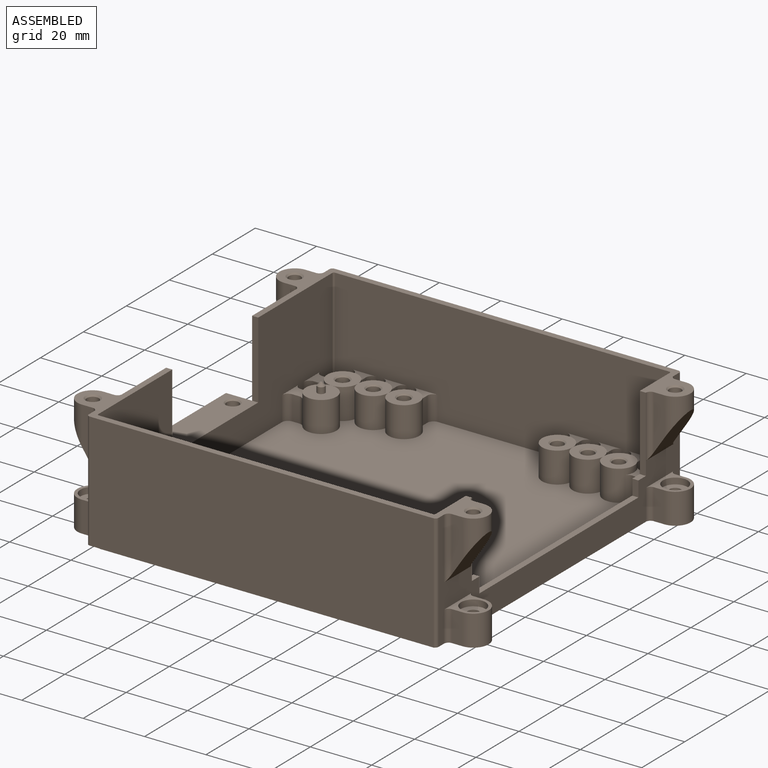
[diagram: assembled view]
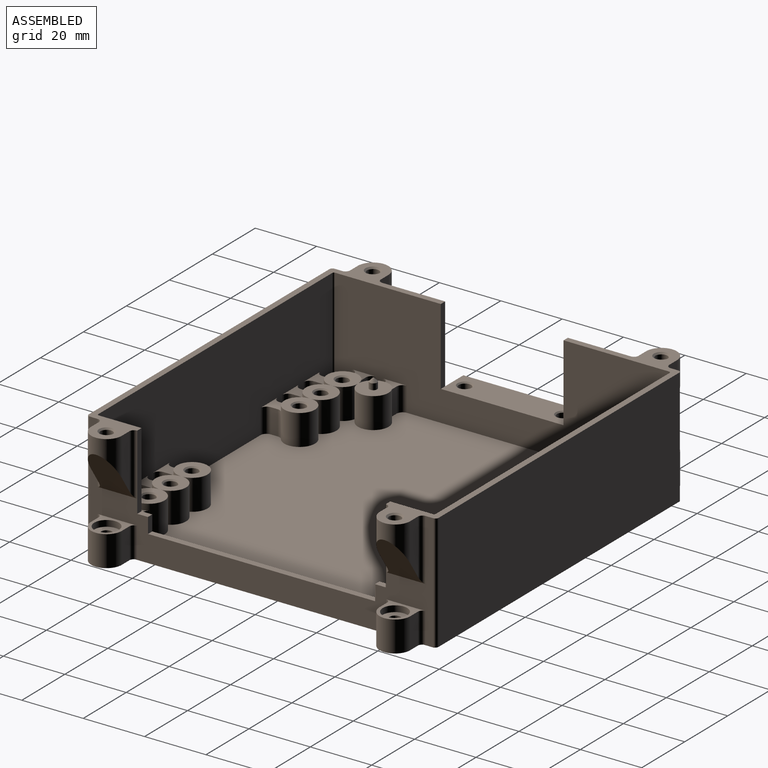
[diagram: assembled view, second angle]
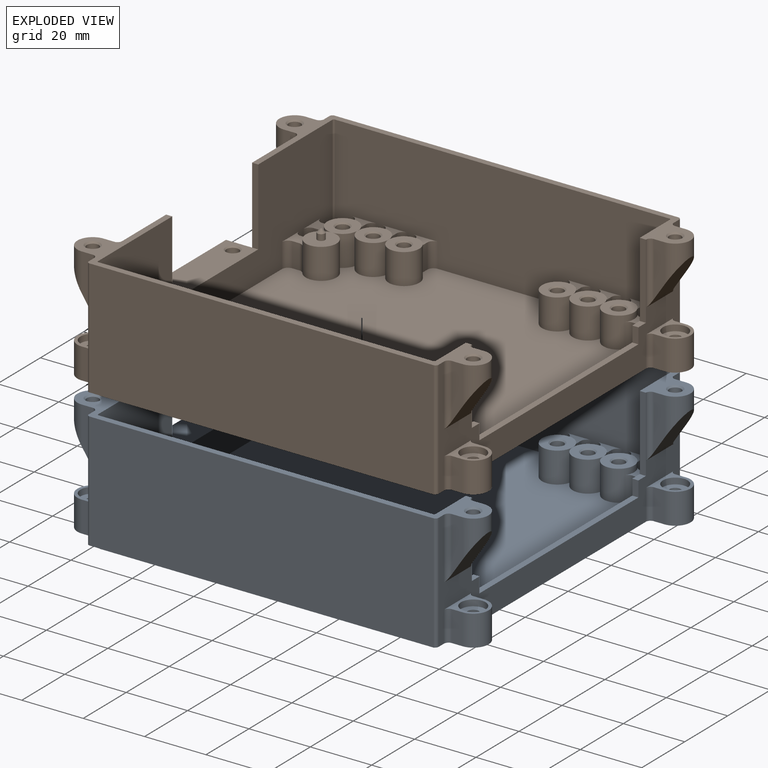
[diagram: exploded view]
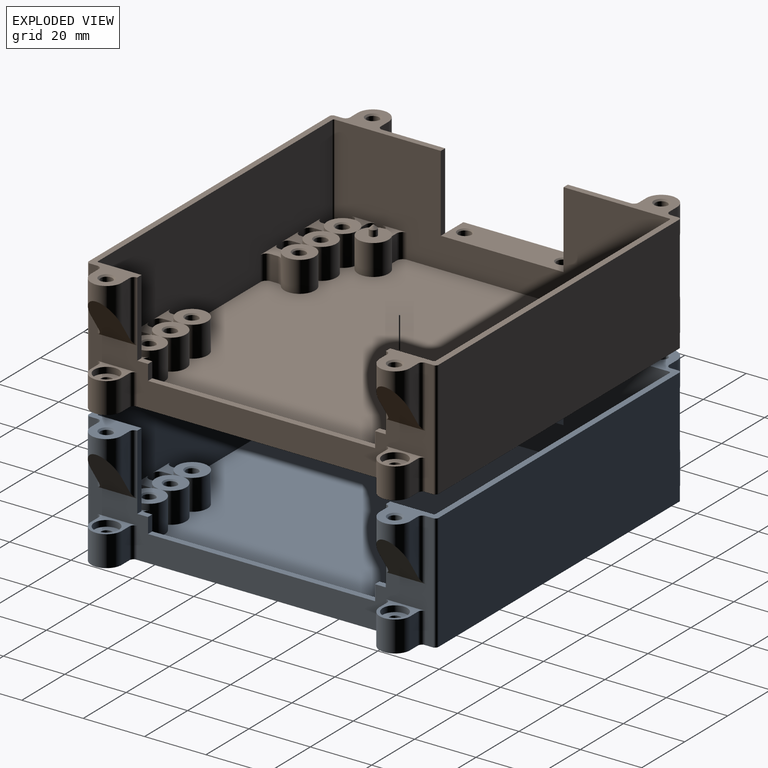
[diagram: exploded view, second angle]
FCSTD DOCUMENT  (FreeCAD 1.0R39104 (Git))
Label: assembly
License: All rights reserved
LicenseURL: https://en.wikipedia.org/wiki/All_rights_reserved
objects: App::Link×3, App::FeaturePython×1, Assembly::JointGroup×1, Assembly::AssemblyObject×1
EXTERNAL_REF file=Case_1.3.5.FCStd obj=Body
EXTERNAL_REF file=Case_2.1.FCStd obj=Body

FEATURE [App::Link] Bottom_cover
  LinkedObject = -> <external Case_1.3.5.FCStd>#Body
FEATURE [App::FeaturePython] GroundedJoint  # Assembly grounded joint (typed FeaturePython)
  ObjectToGround = -> Bottom_cover
FEATURE [Assembly::JointGroup] Joints
  Group = -> [GroundedJoint]
FEATURE [App::Link] Body
  LinkPlacement = pos=(-0.152465,-0.110771,40.9653) rot=(-0.707107,0.707107,0;3.14159rad)
  LinkedObject = -> <external Case_2.1.FCStd>#Body
  Placement = pos=(-0.152465,-0.110771,40.9653) rot=(-0.707107,0.707107,0;3.14159rad)
FEATURE [App::Link] Bottom_cover001
  LinkedObject = -> <external Case_1.3.5.FCStd>#Body
FEATURE [Assembly::AssemblyObject] Assembly
  Group = -> [Joints,Bottom_cover,GroundedJoint,Body,Bottom_cover001]
  Origin = -> Origin
  Type = Assembly

RESOLVED EXTERNAL PARTS (link-assembly join: the EXTERNAL_REF files above that resolve inside this repo's crawl, each included once):
---- part Case_1.3.5.FCStd = doc fcstd_c23592e1575e (51329 chars; too large to inline — full recipe in that document) ----
